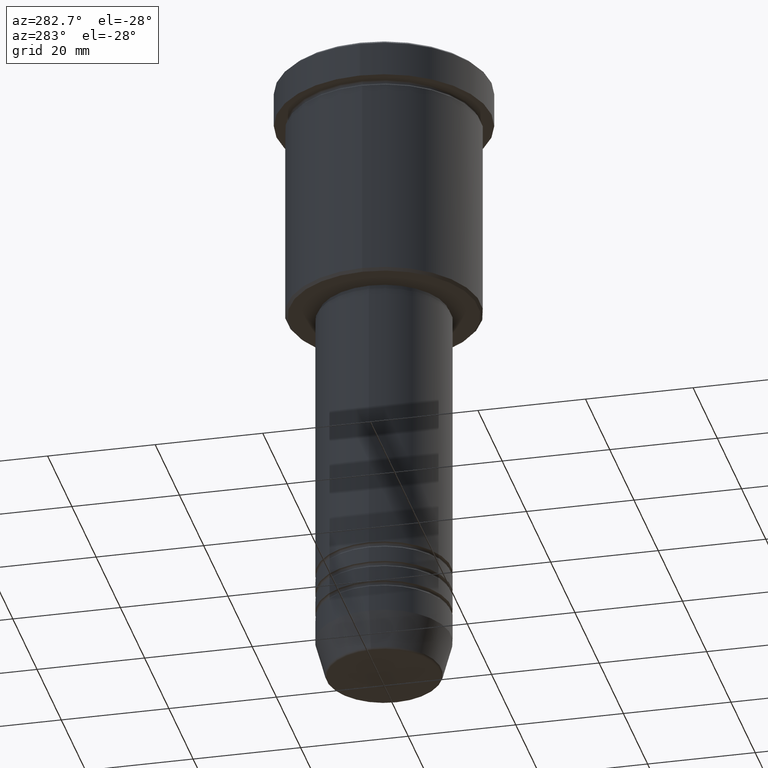
[diagram: clean part render]
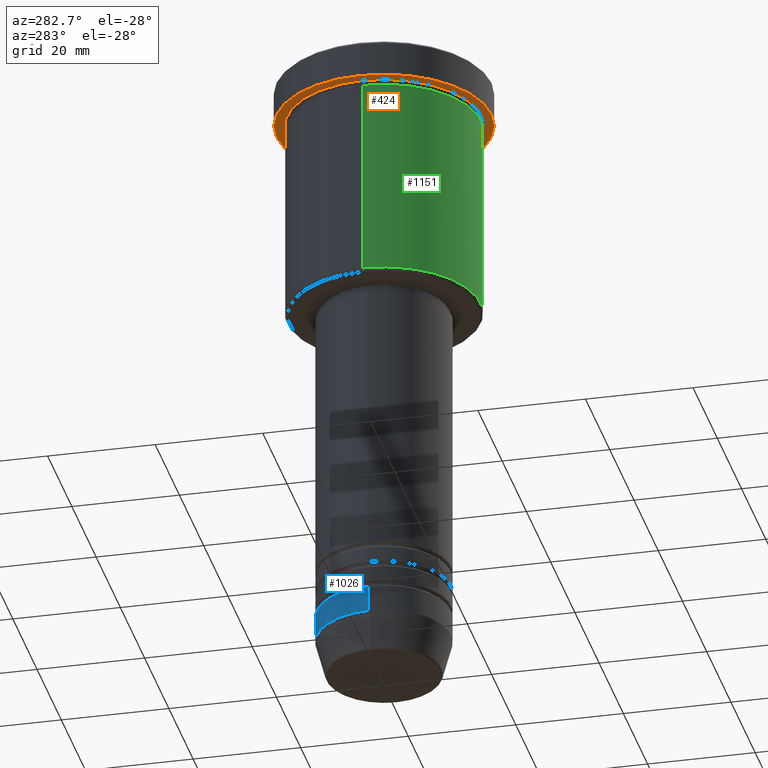
[diagram: same view with three faces highlighted in distinct colors, each labeled with its STEP entity id]
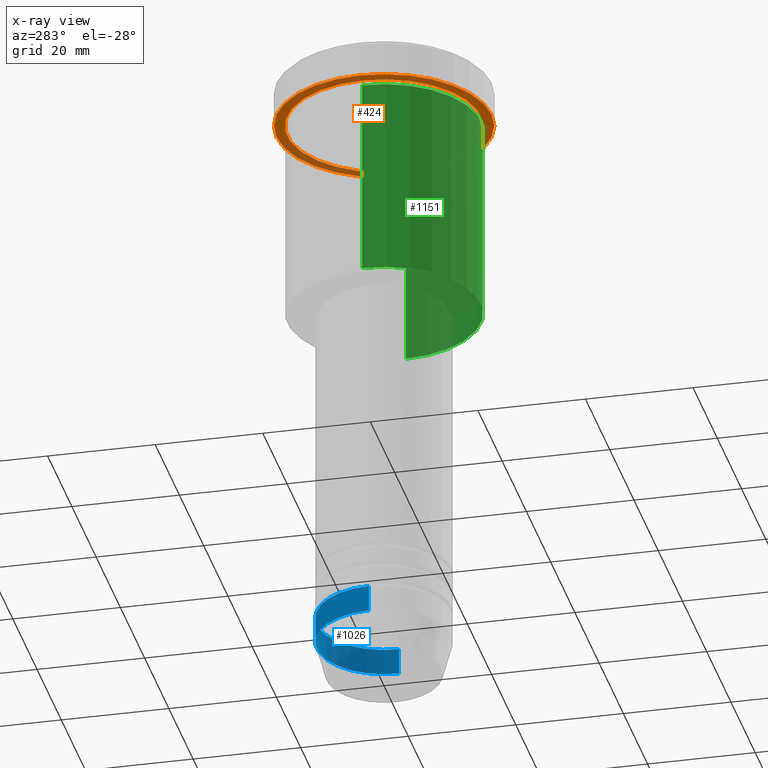
[diagram: x-ray of the same camera — body ghosted, the three highlighted faces saturated]
A machine part, auxiliary view with three faces highlighted in distinct colors.
The next image is the same camera in x-ray (body ghosted, the three faces saturated) — at least one of them is partly hidden behind the body in this view.
Their STEP definitions:

[orange] entity #424 — the highlighted planar face has unit normal (0, 0, -1).
#7 = ORIENTED_EDGE ( 'NONE', *, *, #468, .F. ) ;
#58 = EDGE_LOOP ( 'NONE', ( #465, #251 ) ) ;
#68 = AXIS2_PLACEMENT_3D ( 'NONE', #657, #667, #491 ) ;
#104 = AXIS2_PLACEMENT_3D ( 'NONE', #587, #524, #613 ) ;
#108 = CARTESIAN_POINT ( 'NONE',  ( 0.000000000000000000, 0.000000000000000000, -6.999999999999995559 ) ) ;
#136 = AXIS2_PLACEMENT_3D ( 'NONE', #980, #733, #640 ) ;
#159 = EDGE_CURVE ( 'NONE', #249, #923, #1002, .T. ) ;
#212 = CARTESIAN_POINT ( 'NONE',  ( -18.00000000000000000, 0.000000000000000000, -6.999999999999995559 ) ) ;
#223 = DIRECTION ( 'NONE',  ( -1.000000000000000000, 0.000000000000000000, -0.000000000000000000 ) ) ;
#249 = VERTEX_POINT ( 'NONE', #470 ) ;
#251 = ORIENTED_EDGE ( 'NONE', *, *, #159, .T. ) ;
#272 = CIRCLE ( 'NONE', #68, 18.00000000000000000 ) ;
#317 = DIRECTION ( 'NONE',  ( 0.000000000000000000, 0.000000000000000000, -1.000000000000000000 ) ) ;
#338 = EDGE_LOOP ( 'NONE', ( #439, #7 ) ) ;
#410 = CARTESIAN_POINT ( 'NONE',  ( 0.000000000000000000, 20.00000000000000000, -6.999999999999995559 ) ) ;
#424 = ADVANCED_FACE ( 'NONE', ( #427, #958 ), #579, .T. ) ;
#427 = FACE_BOUND ( 'NONE', #58, .T. ) ;
#439 = ORIENTED_EDGE ( 'NONE', *, *, #521, .F. ) ;
#465 = ORIENTED_EDGE ( 'NONE', *, *, #862, .T. ) ;
#468 = EDGE_CURVE ( 'NONE', #624, #744, #516, .T. ) ;
#470 = CARTESIAN_POINT ( 'NONE',  ( 18.00000000000000000, 2.204364238465235428E-15, -6.999999999999995559 ) ) ;
#473 = AXIS2_PLACEMENT_3D ( 'NONE', #410, #317, #223 ) ;
#491 = DIRECTION ( 'NONE',  ( -1.000000000000000000, 0.000000000000000000, 0.000000000000000000 ) ) ;
#516 = CIRCLE ( 'NONE', #136, 20.00000000000000000 ) ;
#521 = EDGE_CURVE ( 'NONE', #744, #624, #1086, .T. ) ;
#524 = DIRECTION ( 'NONE',  ( -0.000000000000000000, -0.000000000000000000, 1.000000000000000000 ) ) ;
#579 = PLANE ( 'NONE',  #473 ) ;
#587 = CARTESIAN_POINT ( 'NONE',  ( 0.000000000000000000, 0.000000000000000000, -6.999999999999995559 ) ) ;
#606 = AXIS2_PLACEMENT_3D ( 'NONE', #108, #830, #739 ) ;
#613 = DIRECTION ( 'NONE',  ( -1.000000000000000000, 0.000000000000000000, 0.000000000000000000 ) ) ;
#624 = VERTEX_POINT ( 'NONE', #1166 ) ;
#640 = DIRECTION ( 'NONE',  ( 1.000000000000000000, 0.000000000000000000, 0.000000000000000000 ) ) ;
#657 = CARTESIAN_POINT ( 'NONE',  ( 0.000000000000000000, 0.000000000000000000, -6.999999999999995559 ) ) ;
#667 = DIRECTION ( 'NONE',  ( -0.000000000000000000, -0.000000000000000000, 1.000000000000000000 ) ) ;
#733 = DIRECTION ( 'NONE',  ( -0.000000000000000000, -0.000000000000000000, 1.000000000000000000 ) ) ;
#739 = DIRECTION ( 'NONE',  ( 1.000000000000000000, 0.000000000000000000, 0.000000000000000000 ) ) ;
#744 = VERTEX_POINT ( 'NONE', #907 ) ;
#830 = DIRECTION ( 'NONE',  ( -0.000000000000000000, -0.000000000000000000, 1.000000000000000000 ) ) ;
#862 = EDGE_CURVE ( 'NONE', #923, #249, #272, .T. ) ;
#907 = CARTESIAN_POINT ( 'NONE',  ( 20.00000000000000000, 0.000000000000000000, -6.999999999999995559 ) ) ;
#923 = VERTEX_POINT ( 'NONE', #212 ) ;
#958 = FACE_OUTER_BOUND ( 'NONE', #338, .T. ) ;
#980 = CARTESIAN_POINT ( 'NONE',  ( 0.000000000000000000, 0.000000000000000000, -6.999999999999995559 ) ) ;
#1002 = CIRCLE ( 'NONE', #104, 18.00000000000000000 ) ;
#1086 = CIRCLE ( 'NONE', #606, 20.00000000000000000 ) ;
#1166 = CARTESIAN_POINT ( 'NONE',  ( -20.00000000000000000, 2.449293598294706513E-15, -6.999999999999995559 ) ) ;

[blue] entity #1026 — the highlighted cylindrical surface (partial cylindrical patch) has radius 12.5 mm, axis along (-0, -0, 1).
#29 = EDGE_CURVE ( 'NONE', #714, #432, #1134, .T. ) ;
#87 = DIRECTION ( 'NONE',  ( -0.000000000000000000, -0.000000000000000000, 1.000000000000000000 ) ) ;
#178 = LINE ( 'NONE', #535, #275 ) ;
#228 = DIRECTION ( 'NONE',  ( -0.000000000000000000, -0.000000000000000000, 1.000000000000000000 ) ) ;
#275 = VECTOR ( 'NONE', #87, 1000.000000000000000 ) ;
#324 = AXIS2_PLACEMENT_3D ( 'NONE', #1011, #395, #1034 ) ;
#335 = EDGE_CURVE ( 'NONE', #966, #563, #178, .T. ) ;
#339 = CARTESIAN_POINT ( 'NONE',  ( 0.000000000000000000, 0.000000000000000000, -112.9999999999999858 ) ) ;
#372 = VECTOR ( 'NONE', #392, 1000.000000000000000 ) ;
#392 = DIRECTION ( 'NONE',  ( -0.000000000000000000, -0.000000000000000000, 1.000000000000000000 ) ) ;
#395 = DIRECTION ( 'NONE',  ( -0.000000000000000000, -0.000000000000000000, 1.000000000000000000 ) ) ;
#407 = CARTESIAN_POINT ( 'NONE',  ( -12.50000000000000000, 1.530808498934191521E-15, -107.9999999999999858 ) ) ;
#432 = VERTEX_POINT ( 'NONE', #764 ) ;
#483 = CIRCLE ( 'NONE', #1001, 12.50000000000000000 ) ;
#500 = CARTESIAN_POINT ( 'NONE',  ( -12.50000000000000000, 1.530808498934191521E-15, -112.9999999999999858 ) ) ;
#535 = CARTESIAN_POINT ( 'NONE',  ( -12.50000000000000000, 1.530808498934191521E-15, 0.000000000000000000 ) ) ;
#541 = ORIENTED_EDGE ( 'NONE', *, *, #804, .F. ) ;
#563 = VERTEX_POINT ( 'NONE', #407 ) ;
#570 = AXIS2_PLACEMENT_3D ( 'NONE', #1141, #228, #589 ) ;
#589 = DIRECTION ( 'NONE',  ( 1.000000000000000000, 0.000000000000000000, 0.000000000000000000 ) ) ;
#630 = ORIENTED_EDGE ( 'NONE', *, *, #858, .T. ) ;
#685 = CYLINDRICAL_SURFACE ( 'NONE', #570, 12.50000000000000000 ) ;
#714 = VERTEX_POINT ( 'NONE', #893 ) ;
#721 = DIRECTION ( 'NONE',  ( -0.000000000000000000, -0.000000000000000000, 1.000000000000000000 ) ) ;
#762 = FACE_OUTER_BOUND ( 'NONE', #866, .T. ) ;
#764 = CARTESIAN_POINT ( 'NONE',  ( 12.50000000000000000, 0.000000000000000000, -107.9999999999999858 ) ) ;
#804 = EDGE_CURVE ( 'NONE', #432, #563, #996, .T. ) ;
#858 = EDGE_CURVE ( 'NONE', #714, #966, #483, .T. ) ;
#866 = EDGE_LOOP ( 'NONE', ( #630, #1053, #541, #1060 ) ) ;
#893 = CARTESIAN_POINT ( 'NONE',  ( 12.50000000000000000, 0.000000000000000000, -112.9999999999999858 ) ) ;
#928 = CARTESIAN_POINT ( 'NONE',  ( 12.50000000000000000, 0.000000000000000000, 0.000000000000000000 ) ) ;
#966 = VERTEX_POINT ( 'NONE', #500 ) ;
#996 = CIRCLE ( 'NONE', #324, 12.50000000000000000 ) ;
#1001 = AXIS2_PLACEMENT_3D ( 'NONE', #339, #721, #1176 ) ;
#1011 = CARTESIAN_POINT ( 'NONE',  ( 0.000000000000000000, 0.000000000000000000, -107.9999999999999858 ) ) ;
#1026 = ADVANCED_FACE ( 'NONE', ( #762 ), #685, .T. ) ;
#1034 = DIRECTION ( 'NONE',  ( 1.000000000000000000, 0.000000000000000000, 0.000000000000000000 ) ) ;
#1053 = ORIENTED_EDGE ( 'NONE', *, *, #335, .T. ) ;
#1060 = ORIENTED_EDGE ( 'NONE', *, *, #29, .F. ) ;
#1134 = LINE ( 'NONE', #928, #372 ) ;
#1141 = CARTESIAN_POINT ( 'NONE',  ( 0.000000000000000000, 0.000000000000000000, 0.000000000000000000 ) ) ;
#1176 = DIRECTION ( 'NONE',  ( 1.000000000000000000, 0.000000000000000000, 0.000000000000000000 ) ) ;

[green] entity #1151 — the highlighted cylindrical surface (partial cylindrical patch) has radius 18 mm, axis along (-0, -0, 1).
#16 = EDGE_LOOP ( 'NONE', ( #537, #618, #88, #233 ) ) ;
#30 = CARTESIAN_POINT ( 'NONE',  ( -18.00000000000000000, 2.204364238465235428E-15, -45.49999999999998579 ) ) ;
#38 = DIRECTION ( 'NONE',  ( -0.000000000000000000, -0.000000000000000000, 1.000000000000000000 ) ) ;
#49 = AXIS2_PLACEMENT_3D ( 'NONE', #950, #340, #313 ) ;
#63 = VERTEX_POINT ( 'NONE', #665 ) ;
#88 = ORIENTED_EDGE ( 'NONE', *, *, #139, .T. ) ;
#139 = EDGE_CURVE ( 'NONE', #63, #1006, #315, .T. ) ;
#150 = VERTEX_POINT ( 'NONE', #592 ) ;
#233 = ORIENTED_EDGE ( 'NONE', *, *, #534, .F. ) ;
#298 = DIRECTION ( 'NONE',  ( 1.000000000000000000, 0.000000000000000000, 0.000000000000000000 ) ) ;
#310 = VECTOR ( 'NONE', #684, 1000.000000000000000 ) ;
#313 = DIRECTION ( 'NONE',  ( -1.000000000000000000, 0.000000000000000000, 0.000000000000000000 ) ) ;
#315 = LINE ( 'NONE', #984, #310 ) ;
#340 = DIRECTION ( 'NONE',  ( -0.000000000000000000, -0.000000000000000000, 1.000000000000000000 ) ) ;
#436 = EDGE_CURVE ( 'NONE', #799, #63, #507, .T. ) ;
#507 = CIRCLE ( 'NONE', #49, 18.00000000000000000 ) ;
#514 = DIRECTION ( 'NONE',  ( -0.000000000000000000, -0.000000000000000000, 1.000000000000000000 ) ) ;
#534 = EDGE_CURVE ( 'NONE', #150, #1006, #815, .T. ) ;
#537 = ORIENTED_EDGE ( 'NONE', *, *, #644, .F. ) ;
#565 = CARTESIAN_POINT ( 'NONE',  ( 0.000000000000000000, 0.000000000000000000, -7.999999999999996447 ) ) ;
#592 = CARTESIAN_POINT ( 'NONE',  ( -18.00000000000000000, 2.204364238465235428E-15, -7.999999999999996447 ) ) ;
#618 = ORIENTED_EDGE ( 'NONE', *, *, #436, .T. ) ;
#629 = AXIS2_PLACEMENT_3D ( 'NONE', #565, #1023, #298 ) ;
#644 = EDGE_CURVE ( 'NONE', #799, #150, #1152, .T. ) ;
#665 = CARTESIAN_POINT ( 'NONE',  ( 18.00000000000000000, 0.000000000000000000, -45.49999999999998579 ) ) ;
#671 = CARTESIAN_POINT ( 'NONE',  ( 0.000000000000000000, 0.000000000000000000, 0.000000000000000000 ) ) ;
#684 = DIRECTION ( 'NONE',  ( -0.000000000000000000, -0.000000000000000000, 1.000000000000000000 ) ) ;
#695 = CARTESIAN_POINT ( 'NONE',  ( -18.00000000000000000, 2.204364238465235428E-15, 0.000000000000000000 ) ) ;
#799 = VERTEX_POINT ( 'NONE', #30 ) ;
#815 = CIRCLE ( 'NONE', #629, 18.00000000000000000 ) ;
#844 = FACE_OUTER_BOUND ( 'NONE', #16, .T. ) ;
#950 = CARTESIAN_POINT ( 'NONE',  ( 0.000000000000000000, 0.000000000000000000, -45.49999999999998579 ) ) ;
#984 = CARTESIAN_POINT ( 'NONE',  ( 18.00000000000000000, 0.000000000000000000, 0.000000000000000000 ) ) ;
#999 = AXIS2_PLACEMENT_3D ( 'NONE', #671, #38, #1116 ) ;
#1006 = VERTEX_POINT ( 'NONE', #1137 ) ;
#1023 = DIRECTION ( 'NONE',  ( -0.000000000000000000, -0.000000000000000000, 1.000000000000000000 ) ) ;
#1116 = DIRECTION ( 'NONE',  ( 1.000000000000000000, 0.000000000000000000, 0.000000000000000000 ) ) ;
#1125 = CYLINDRICAL_SURFACE ( 'NONE', #999, 18.00000000000000000 ) ;
#1129 = VECTOR ( 'NONE', #514, 1000.000000000000000 ) ;
#1137 = CARTESIAN_POINT ( 'NONE',  ( 18.00000000000000000, 0.000000000000000000, -7.999999999999996447 ) ) ;
#1151 = ADVANCED_FACE ( 'NONE', ( #844 ), #1125, .T. ) ;
#1152 = LINE ( 'NONE', #695, #1129 ) ;